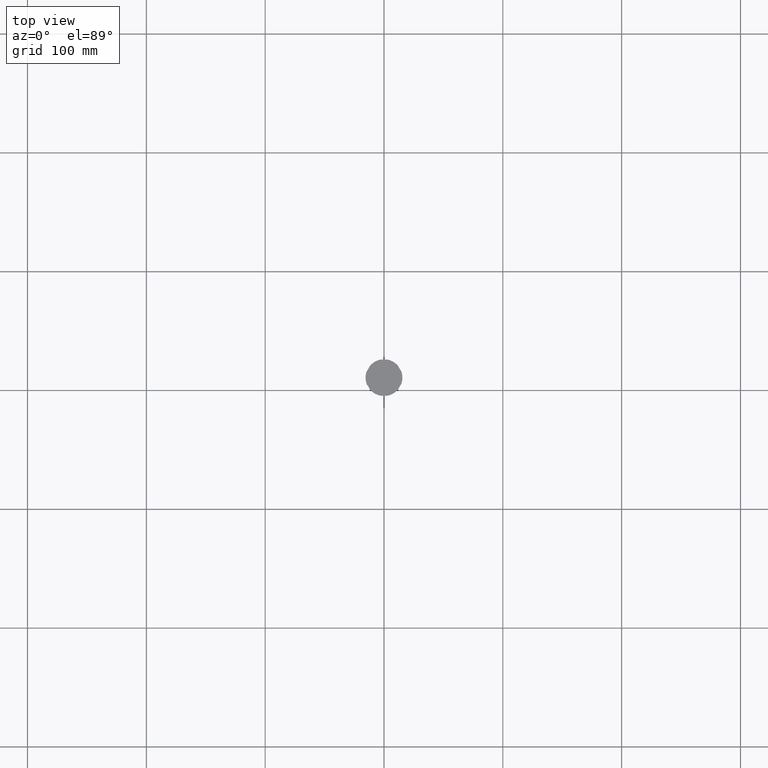
[diagram: clean part render]
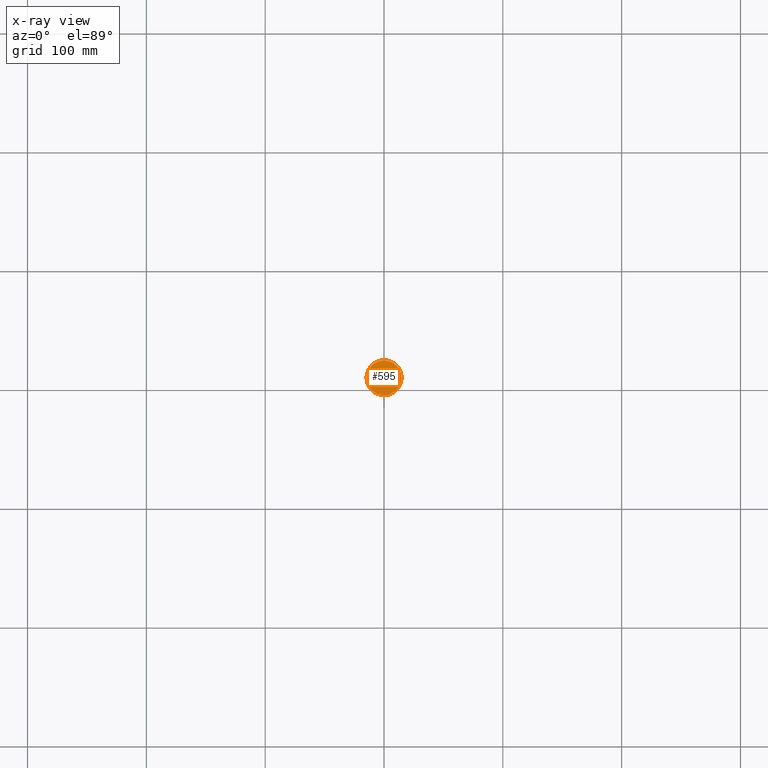
[diagram: x-ray — body ghosted, one internal face saturated and labeled with its STEP entity id]
A machine part, top view, then the same camera in x-ray: the body is ghosted and one INTERNAL B-rep face — a face not visible from any outside direction — is saturated and labeled: STEP entity #595.
In plain terms, the highlighted planar face has unit normal (0, 0, -1).
Its self-contained STEP definition (entity closure, byte-faithful):
#430 = PLANE ( 'NONE',  #1226 ) ;
#595 = ADVANCED_FACE ( 'NONE', ( #644 ), #430, .F. ) ;
#644 = FACE_OUTER_BOUND ( 'NONE', #1059, .T. ) ;
#725 = CARTESIAN_POINT ( 'NONE',  ( 0.000000000000000000, 0.000000000000000000, -12.00000000000000000 ) ) ;
#888 = ORIENTED_EDGE ( 'NONE', *, *, #1893, .T. ) ;
#1032 = DIRECTION ( 'NONE',  ( 0.000000000000000000, 0.000000000000000000, -1.000000000000000000 ) ) ;
#1059 = EDGE_LOOP ( 'NONE', ( #1311, #888 ) ) ;
#1106 = CARTESIAN_POINT ( 'NONE',  ( 0.000000000000000000, 0.000000000000000000, -12.00000000000000000 ) ) ;
#1123 = VERTEX_POINT ( 'NONE', #1349 ) ;
#1226 = AXIS2_PLACEMENT_3D ( 'NONE', #1322, #1032, #1792 ) ;
#1233 = CIRCLE ( 'NONE', #1696, 14.70000000000000107 ) ;
#1311 = ORIENTED_EDGE ( 'NONE', *, *, #2119, .T. ) ;
#1322 = CARTESIAN_POINT ( 'NONE',  ( 0.000000000000000000, 0.000000000000000000, -12.00000000000000000 ) ) ;
#1349 = CARTESIAN_POINT ( 'NONE',  ( -14.70000000000000107, 0.000000000000000000, -12.00000000000000000 ) ) ;
#1466 = AXIS2_PLACEMENT_3D ( 'NONE', #725, #2421, #1574 ) ;
#1574 = DIRECTION ( 'NONE',  ( -1.000000000000000000, 0.000000000000000000, 0.000000000000000000 ) ) ;
#1577 = DIRECTION ( 'NONE',  ( -1.000000000000000000, 0.000000000000000000, 0.000000000000000000 ) ) ;
#1615 = VERTEX_POINT ( 'NONE', #2575 ) ;
#1696 = AXIS2_PLACEMENT_3D ( 'NONE', #1106, #2227, #1577 ) ;
#1792 = DIRECTION ( 'NONE',  ( -1.000000000000000000, 0.000000000000000000, -0.000000000000000000 ) ) ;
#1893 = EDGE_CURVE ( 'NONE', #1615, #1123, #1233, .T. ) ;
#2119 = EDGE_CURVE ( 'NONE', #1123, #1615, #2208, .T. ) ;
#2208 = CIRCLE ( 'NONE', #1466, 14.70000000000000107 ) ;
#2227 = DIRECTION ( 'NONE',  ( -0.000000000000000000, -0.000000000000000000, 1.000000000000000000 ) ) ;
#2421 = DIRECTION ( 'NONE',  ( -0.000000000000000000, -0.000000000000000000, 1.000000000000000000 ) ) ;
#2575 = CARTESIAN_POINT ( 'NONE',  ( 14.70000000000000107, 1.818600496733819553E-15, -12.00000000000000000 ) ) ;